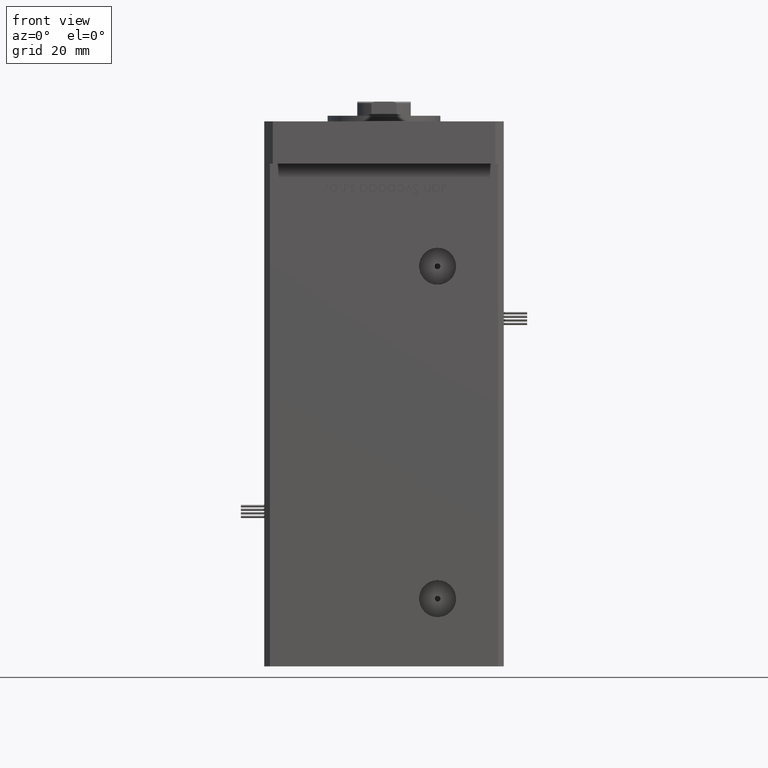
[diagram: clean part render]
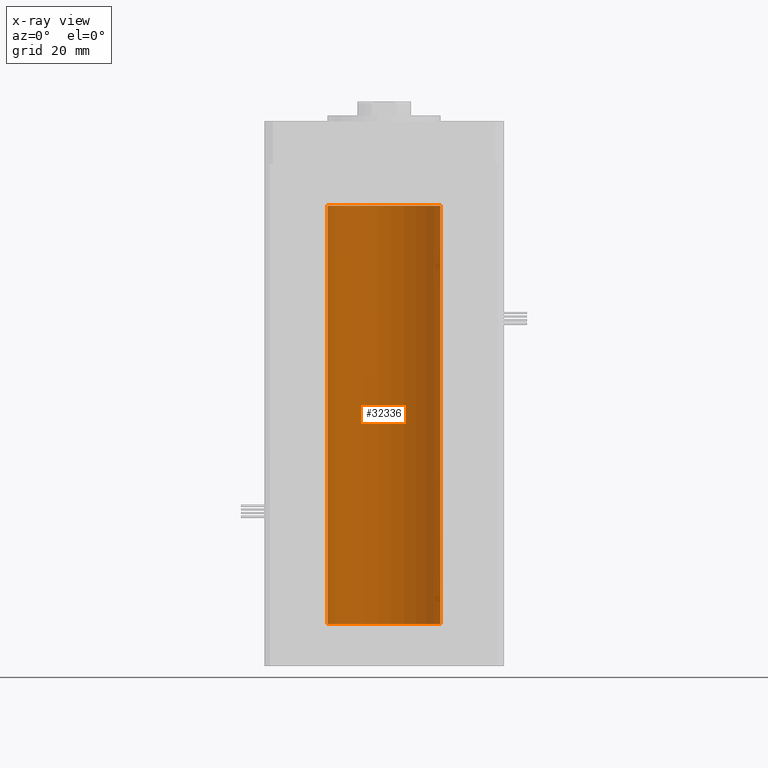
[diagram: x-ray — body ghosted, one internal face saturated and labeled with its STEP entity id]
A machine part, front view, then the same camera in x-ray: the body is ghosted and one INTERNAL B-rep face — a face not visible from any outside direction — is saturated and labeled: STEP entity #32336.
In plain terms, the highlighted cylindrical surface (partial cylindrical patch) has radius 20 mm, axis along (-0, -0, -1).
Its self-contained STEP definition (entity closure, byte-faithful):
#203 = CARTESIAN_POINT ( 'NONE',  ( 0.000000000000000000, 0.000000000000000000, 148.5000000000000000 ) ) ;
#2191 = DIRECTION ( 'NONE',  ( 1.000000000000000000, 0.000000000000000000, 0.000000000000000000 ) ) ;
#3260 = VERTEX_POINT ( 'NONE', #47207 ) ;
#5829 = CARTESIAN_POINT ( 'NONE',  ( 0.000000000000000000, 0.000000000000000000, 148.5000000000000000 ) ) ;
#7117 = DIRECTION ( 'NONE',  ( -0.000000000000000000, -0.000000000000000000, -1.000000000000000000 ) ) ;
#7791 = DIRECTION ( 'NONE',  ( 1.000000000000000000, 0.000000000000000000, 0.000000000000000000 ) ) ;
#8998 = CARTESIAN_POINT ( 'NONE',  ( -20.00000000000000000, 0.000000000000000000, 148.5000000000000000 ) ) ;
#9789 = ORIENTED_EDGE ( 'NONE', *, *, #22318, .T. ) ;
#9901 = DIRECTION ( 'NONE',  ( -0.000000000000000000, 0.000000000000000000, 1.000000000000000000 ) ) ;
#10761 = DIRECTION ( 'NONE',  ( -0.000000000000000000, -0.000000000000000000, -1.000000000000000000 ) ) ;
#11025 = VECTOR ( 'NONE', #7117, 1000.000000000000000 ) ;
#11111 = LINE ( 'NONE', #28496, #11025 ) ;
#16904 = DIRECTION ( 'NONE',  ( -0.000000000000000000, 0.000000000000000000, 1.000000000000000000 ) ) ;
#18079 = ORIENTED_EDGE ( 'NONE', *, *, #48722, .T. ) ;
#20673 = EDGE_LOOP ( 'NONE', ( #22299, #18079, #9789, #55265 ) ) ;
#21039 = CIRCLE ( 'NONE', #29248, 20.00000000000000000 ) ;
#21454 = CIRCLE ( 'NONE', #41445, 20.00000000000000000 ) ;
#22299 = ORIENTED_EDGE ( 'NONE', *, *, #29527, .F. ) ;
#22318 = EDGE_CURVE ( 'NONE', #53967, #3260, #23310, .T. ) ;
#23310 = LINE ( 'NONE', #27572, #39805 ) ;
#25868 = DIRECTION ( 'NONE',  ( -0.000000000000000000, -0.000000000000000000, -1.000000000000000000 ) ) ;
#27572 = CARTESIAN_POINT ( 'NONE',  ( -20.00000000000000000, 0.000000000000000000, 148.5000000000000000 ) ) ;
#28496 = CARTESIAN_POINT ( 'NONE',  ( 20.00000000000000000, 2.449293598294706513E-15, 148.5000000000000000 ) ) ;
#29036 = EDGE_CURVE ( 'NONE', #37336, #3260, #21039, .T. ) ;
#29248 = AXIS2_PLACEMENT_3D ( 'NONE', #36660, #9901, #2191 ) ;
#29527 = EDGE_CURVE ( 'NONE', #44158, #37336, #11111, .T. ) ;
#29870 = FACE_OUTER_BOUND ( 'NONE', #20673, .T. ) ;
#32336 = ADVANCED_FACE ( 'NONE', ( #29870 ), #39242, .F. ) ;
#36660 = CARTESIAN_POINT ( 'NONE',  ( 0.000000000000000000, 0.000000000000000000, 0.000000000000000000 ) ) ;
#37336 = VERTEX_POINT ( 'NONE', #56409 ) ;
#37389 = CARTESIAN_POINT ( 'NONE',  ( 20.00000000000000000, 2.449293598294706513E-15, 148.5000000000000000 ) ) ;
#39242 = CYLINDRICAL_SURFACE ( 'NONE', #42798, 20.00000000000000000 ) ;
#39805 = VECTOR ( 'NONE', #10761, 1000.000000000000000 ) ;
#41445 = AXIS2_PLACEMENT_3D ( 'NONE', #5829, #16904, #7791 ) ;
#42798 = AXIS2_PLACEMENT_3D ( 'NONE', #203, #25868, #48100 ) ;
#44158 = VERTEX_POINT ( 'NONE', #37389 ) ;
#47207 = CARTESIAN_POINT ( 'NONE',  ( -20.00000000000000000, 0.000000000000000000, 0.000000000000000000 ) ) ;
#48100 = DIRECTION ( 'NONE',  ( -1.000000000000000000, 0.000000000000000000, 0.000000000000000000 ) ) ;
#48722 = EDGE_CURVE ( 'NONE', #44158, #53967, #21454, .T. ) ;
#53967 = VERTEX_POINT ( 'NONE', #8998 ) ;
#55265 = ORIENTED_EDGE ( 'NONE', *, *, #29036, .F. ) ;
#56409 = CARTESIAN_POINT ( 'NONE',  ( 20.00000000000000000, 2.449293598294706513E-15, 0.000000000000000000 ) ) ;